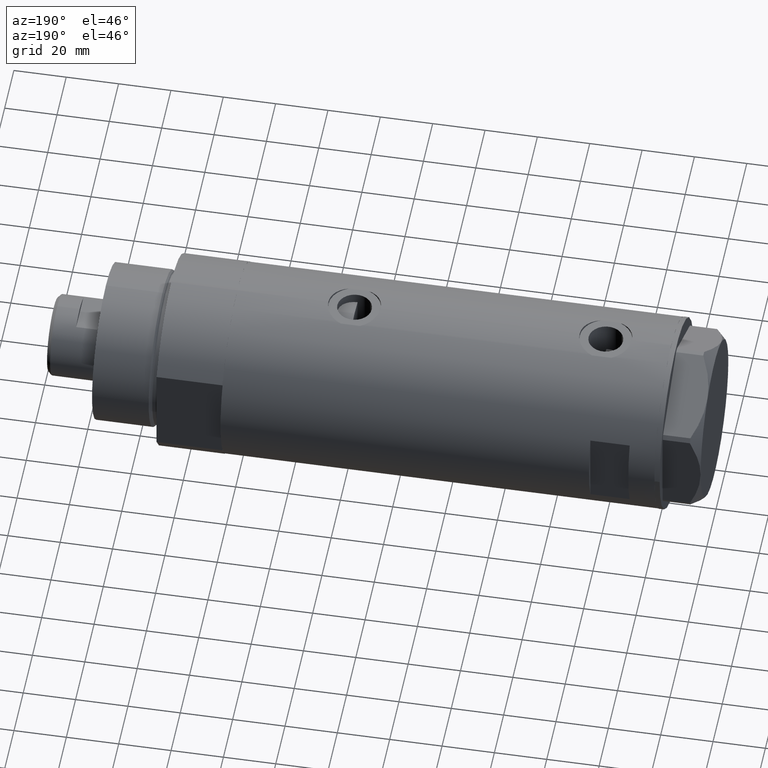
[diagram: clean part render]
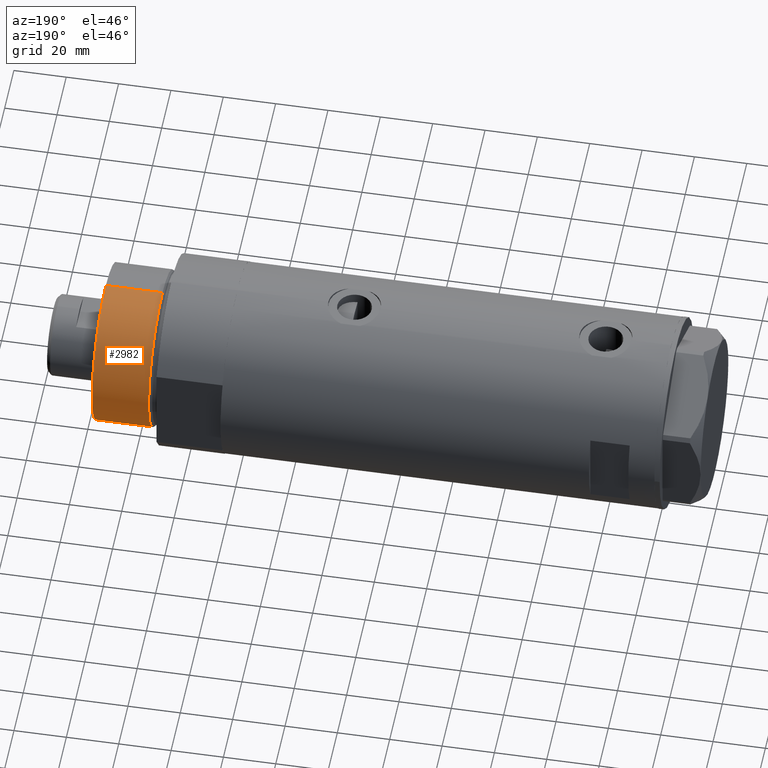
[diagram: same view with one face highlighted and labeled with its STEP entity id]
A machine part, auxiliary view. The second image highlights one B-rep face of the part: STEP entity #2982.
In plain terms, the highlighted cylindrical surface (partial cylindrical patch) has radius 30 mm, axis along (-1, -0, 0).
Its self-contained STEP definition (entity closure, byte-faithful):
#4 = EDGE_CURVE ( 'NONE', #3843, #2138, #1462, .T. ) ;
#23 = DIRECTION ( 'NONE',  ( 1.000000000000000000, 0.000000000000000000, 0.000000000000000000 ) ) ;
#140 = DIRECTION ( 'NONE',  ( -0.000000000000000000, -0.000000000000000000, -1.000000000000000000 ) ) ;
#155 = VECTOR ( 'NONE', #140, 1000.000000000000000 ) ;
#225 = CARTESIAN_POINT ( 'NONE',  ( -30.00000000000000000, 0.000000000000000000, 50.19999999999999574 ) ) ;
#237 = CARTESIAN_POINT ( 'NONE',  ( 0.000000000000000000, 0.000000000000000000, 50.19999999999999574 ) ) ;
#280 = EDGE_CURVE ( 'NONE', #844, #4465, #2067, .T. ) ;
#372 = ORIENTED_EDGE ( 'NONE', *, *, #280, .T. ) ;
#530 = AXIS2_PLACEMENT_3D ( 'NONE', #4315, #1196, #23 ) ;
#844 = VERTEX_POINT ( 'NONE', #2038 ) ;
#885 = DIRECTION ( 'NONE',  ( -1.000000000000000000, 0.000000000000000000, 0.000000000000000000 ) ) ;
#1004 = VECTOR ( 'NONE', #3838, 1000.000000000000000 ) ;
#1196 = DIRECTION ( 'NONE',  ( 0.000000000000000000, 0.000000000000000000, 1.000000000000000000 ) ) ;
#1235 = FACE_OUTER_BOUND ( 'NONE', #3114, .T. ) ;
#1285 = ORIENTED_EDGE ( 'NONE', *, *, #4, .F. ) ;
#1462 = LINE ( 'NONE', #2929, #155 ) ;
#1727 = CIRCLE ( 'NONE', #3926, 30.00000000000000000 ) ;
#1971 = DIRECTION ( 'NONE',  ( -0.000000000000000000, -0.000000000000000000, -1.000000000000000000 ) ) ;
#2018 = AXIS2_PLACEMENT_3D ( 'NONE', #237, #1971, #885 ) ;
#2038 = CARTESIAN_POINT ( 'NONE',  ( 30.00000000000000000, 3.673940397442058389E-15, 50.19999999999999574 ) ) ;
#2067 = LINE ( 'NONE', #2372, #1004 ) ;
#2138 = VERTEX_POINT ( 'NONE', #2970 ) ;
#2231 = ORIENTED_EDGE ( 'NONE', *, *, #2513, .T. ) ;
#2372 = CARTESIAN_POINT ( 'NONE',  ( 30.00000000000000000, 3.673940397442058389E-15, 50.19999999999999574 ) ) ;
#2513 = EDGE_CURVE ( 'NONE', #4465, #2138, #1727, .T. ) ;
#2704 = ORIENTED_EDGE ( 'NONE', *, *, #2846, .F. ) ;
#2846 = EDGE_CURVE ( 'NONE', #844, #3843, #4225, .T. ) ;
#2875 = CARTESIAN_POINT ( 'NONE',  ( 0.000000000000000000, 0.000000000000000000, 28.57384048104054486 ) ) ;
#2929 = CARTESIAN_POINT ( 'NONE',  ( -30.00000000000000000, 0.000000000000000000, 50.19999999999999574 ) ) ;
#2970 = CARTESIAN_POINT ( 'NONE',  ( -30.00000000000000000, 0.000000000000000000, 28.57384048104054486 ) ) ;
#2982 = ADVANCED_FACE ( 'NONE', ( #1235 ), #4038, .T. ) ;
#3114 = EDGE_LOOP ( 'NONE', ( #2704, #372, #2231, #1285 ) ) ;
#3680 = DIRECTION ( 'NONE',  ( -0.000000000000000000, -0.000000000000000000, 1.000000000000000000 ) ) ;
#3838 = DIRECTION ( 'NONE',  ( -0.000000000000000000, -0.000000000000000000, -1.000000000000000000 ) ) ;
#3843 = VERTEX_POINT ( 'NONE', #225 ) ;
#3926 = AXIS2_PLACEMENT_3D ( 'NONE', #2875, #3680, #4286 ) ;
#4038 = CYLINDRICAL_SURFACE ( 'NONE', #2018, 30.00000000000000000 ) ;
#4178 = CARTESIAN_POINT ( 'NONE',  ( 30.00000000000000000, 3.673940397442058389E-15, 28.57384048104054486 ) ) ;
#4225 = CIRCLE ( 'NONE', #530, 30.00000000000000000 ) ;
#4286 = DIRECTION ( 'NONE',  ( 1.000000000000000000, 0.000000000000000000, 0.000000000000000000 ) ) ;
#4315 = CARTESIAN_POINT ( 'NONE',  ( 0.000000000000000000, 0.000000000000000000, 50.19999999999999574 ) ) ;
#4465 = VERTEX_POINT ( 'NONE', #4178 ) ;